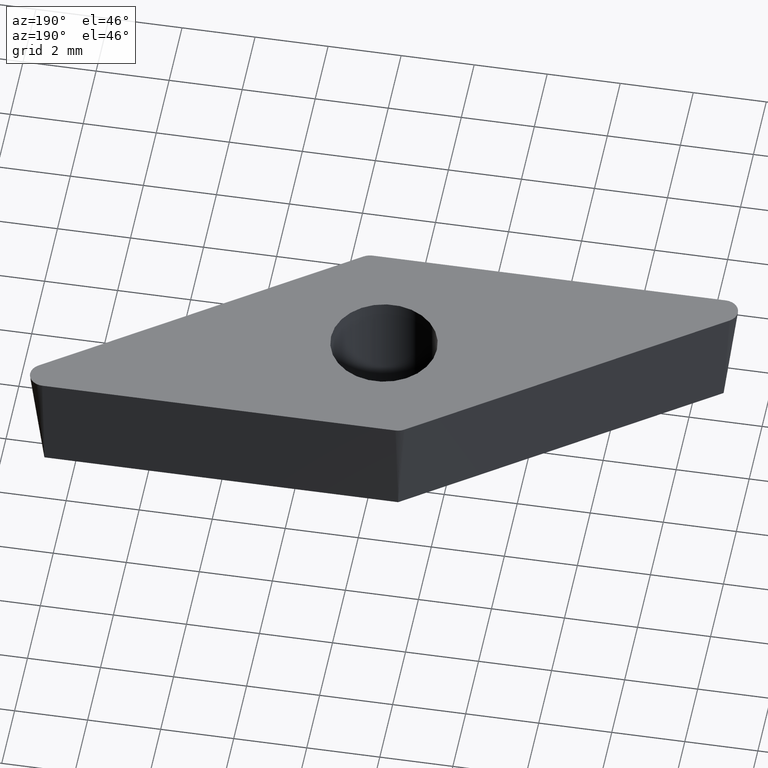
[diagram: clean part render]
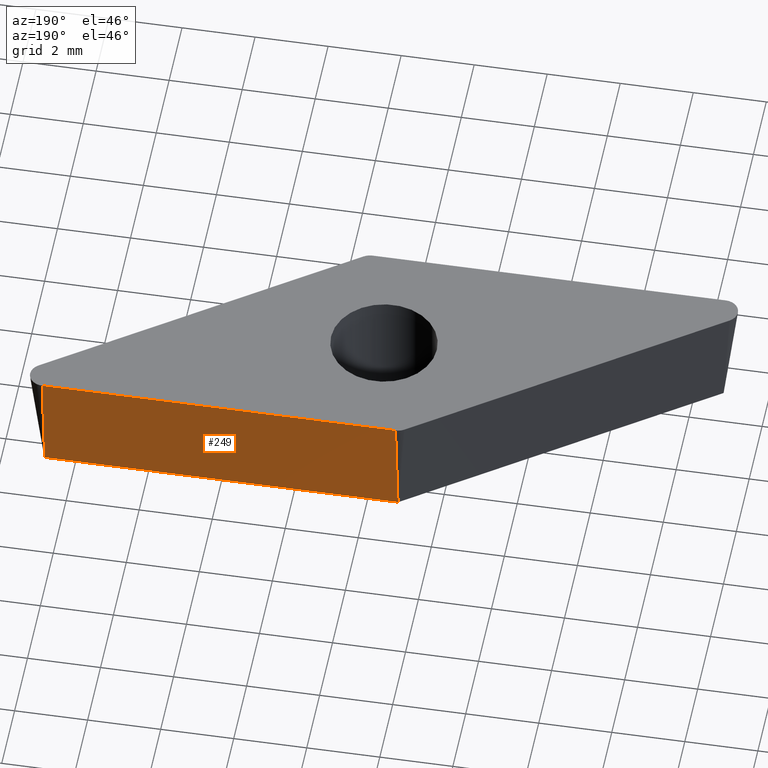
[diagram: same view with one face highlighted and labeled with its STEP entity id]
A machine part, auxiliary view. The second image highlights one B-rep face of the part: STEP entity #249.
In plain terms, the highlighted face is a freeform B-spline surface patch.
Its self-contained STEP definition (entity closure, byte-faithful):
#30 = CARTESIAN_POINT ( 'NONE',  ( 8.801175576557993100, 3.175000000000002000, 0.0000000000000000000 ) ) ;
#32 = VERTEX_POINT ( 'NONE', #30 ) ;
#37 = CARTESIAN_POINT ( 'NONE',  ( 5.575799004658932700, 2.706454115594517000, -3.815999999999999800 ) ) ;
#50 = VERTEX_POINT ( 'NONE', #100 ) ;
#70 = DIRECTION ( 'NONE',  ( 2.864399321849623000E-017, -0.1218693434051477400, -0.9925461516413219800 ) ) ;
#100 = CARTESIAN_POINT ( 'NONE',  ( -0.8749541391391708600, 2.784545096328762300, -3.180000000000000200 ) ) ;
#101 = CARTESIAN_POINT ( 'NONE',  ( 2.350422432759891000, 2.706454115594514800, -3.815999999999999800 ) ) ;
#103 = VERTEX_POINT ( 'NONE', #119 ) ;
#119 = CARTESIAN_POINT ( 'NONE',  ( -0.8749541391391701900, 3.174999999999999800, 0.0000000000000000000 ) ) ;
#153 = VERTEX_POINT ( 'NONE', #398 ) ;
#162 = CARTESIAN_POINT ( 'NONE',  ( 5.575799004658932700, 2.784545096328764600, -3.180000000000000200 ) ) ;
#181 = EDGE_LOOP ( 'NONE', ( #296, #260, #338, #425 ) ) ;
#211 = CARTESIAN_POINT ( 'NONE',  ( 8.801175576557993100, 2.706454115594517000, -3.815999999999999800 ) ) ;
#220 = B_SPLINE_SURFACE_WITH_KNOTS ( 'NONE', 1, 3, ( 
 ( #447, #395, #450, #448 ),
 ( #211, #37, #101, #471 ) ),
 .UNSPECIFIED., .F., .F., .F.,
 ( 2, 2 ),
 ( 4, 4 ),
 ( 0.0000000000000000000, 1.000000000000000000 ),
 ( -0.009802249231248758700, -0.0001261195155515939900 ),
 .UNSPECIFIED. ) ;
#234 = VECTOR ( 'NONE', #70, 1000.000000000000000 ) ;
#247 = CARTESIAN_POINT ( 'NONE',  ( -0.8749541391391708600, 2.784545096328762300, -3.180000000000000200 ) ) ;
#249 = ADVANCED_FACE ( 'NONE', ( #279 ), #220, .T. ) ;
#260 = ORIENTED_EDGE ( 'NONE', *, *, #358, .T. ) ;
#279 = FACE_OUTER_BOUND ( 'NONE', #181, .T. ) ;
#296 = ORIENTED_EDGE ( 'NONE', *, *, #356, .T. ) ;
#298 = CARTESIAN_POINT ( 'NONE',  ( 8.801175576557993100, 2.784545096328764600, -3.180000000000000200 ) ) ;
#301 = EDGE_CURVE ( 'NONE', #32, #153, #317, .T. ) ;
#303 = CARTESIAN_POINT ( 'NONE',  ( 2.350422432759891000, 2.784545096328762300, -3.180000000000000200 ) ) ;
#311 = CARTESIAN_POINT ( 'NONE',  ( -0.8749541391391709700, 3.174999999999999800, 0.0000000000000000000 ) ) ;
#317 = LINE ( 'NONE', #331, #234 ) ;
#331 = CARTESIAN_POINT ( 'NONE',  ( 8.801175576557993100, 3.175000000000002000, 0.0000000000000000000 ) ) ;
#338 = ORIENTED_EDGE ( 'NONE', *, *, #352, .F. ) ;
#352 = EDGE_CURVE ( 'NONE', #32, #103, #427, .T. ) ;
#356 = EDGE_CURVE ( 'NONE', #153, #50, #409, .T. ) ;
#358 = EDGE_CURVE ( 'NONE', #50, #103, #470, .T. ) ;
#359 = DIRECTION ( 'NONE',  ( -2.864399321849623000E-017, 0.1218693434051477400, 0.9925461516413219800 ) ) ;
#395 = CARTESIAN_POINT ( 'NONE',  ( 5.575799004658932700, 3.175000000000002000, 0.0000000000000000000 ) ) ;
#398 = CARTESIAN_POINT ( 'NONE',  ( 8.801175576557993100, 2.784545096328764600, -3.180000000000000200 ) ) ;
#408 = DIRECTION ( 'NONE',  ( -1.000000000000000000, -2.350385455288036700E-016, -0.0000000000000000000 ) ) ;
#409 = B_SPLINE_CURVE_WITH_KNOTS ( 'NONE', 3,
 ( #298, #162, #303, #247 ),
 .UNSPECIFIED., .F., .F.,
 ( 4, 4 ),
 ( 0.0000000000000000000, 0.009676129715697165100 ),
 .UNSPECIFIED. ) ;
#425 = ORIENTED_EDGE ( 'NONE', *, *, #301, .T. ) ;
#426 = CARTESIAN_POINT ( 'NONE',  ( -1.001073654690764100, 3.174999999999999800, 0.0000000000000000000 ) ) ;
#427 = LINE ( 'NONE', #426, #481 ) ;
#447 = CARTESIAN_POINT ( 'NONE',  ( 8.801175576557993100, 3.175000000000002000, 0.0000000000000000000 ) ) ;
#448 = CARTESIAN_POINT ( 'NONE',  ( -0.8749541391391709700, 3.174999999999999800, 0.0000000000000000000 ) ) ;
#450 = CARTESIAN_POINT ( 'NONE',  ( 2.350422432759891900, 3.174999999999999800, 0.0000000000000000000 ) ) ;
#468 = VECTOR ( 'NONE', #359, 1000.000000000000000 ) ;
#470 = LINE ( 'NONE', #311, #468 ) ;
#471 = CARTESIAN_POINT ( 'NONE',  ( -0.8749541391391708600, 2.706454115594514800, -3.815999999999999800 ) ) ;
#481 = VECTOR ( 'NONE', #408, 1000.000000000000000 ) ;